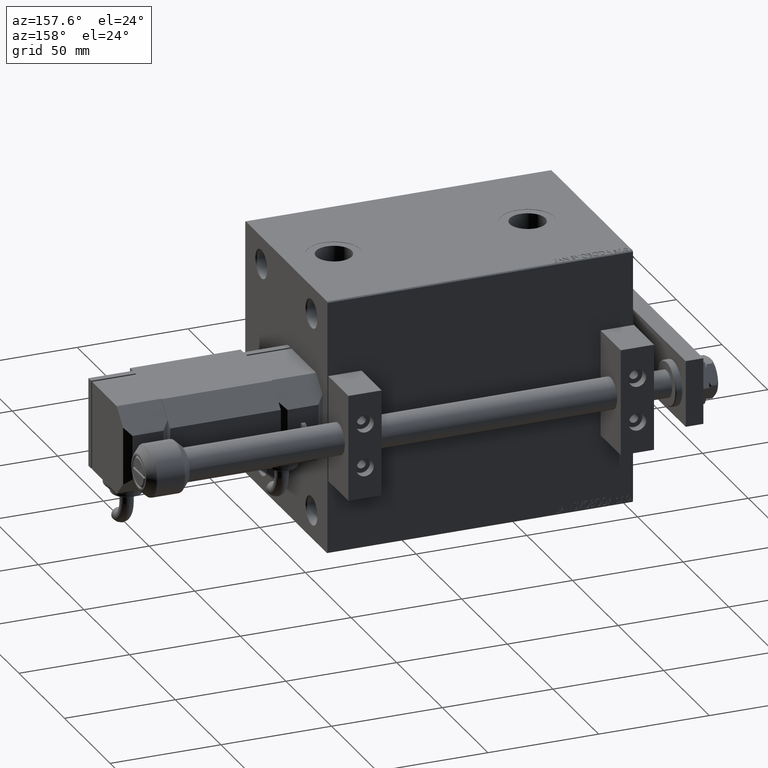
[diagram: clean part render]
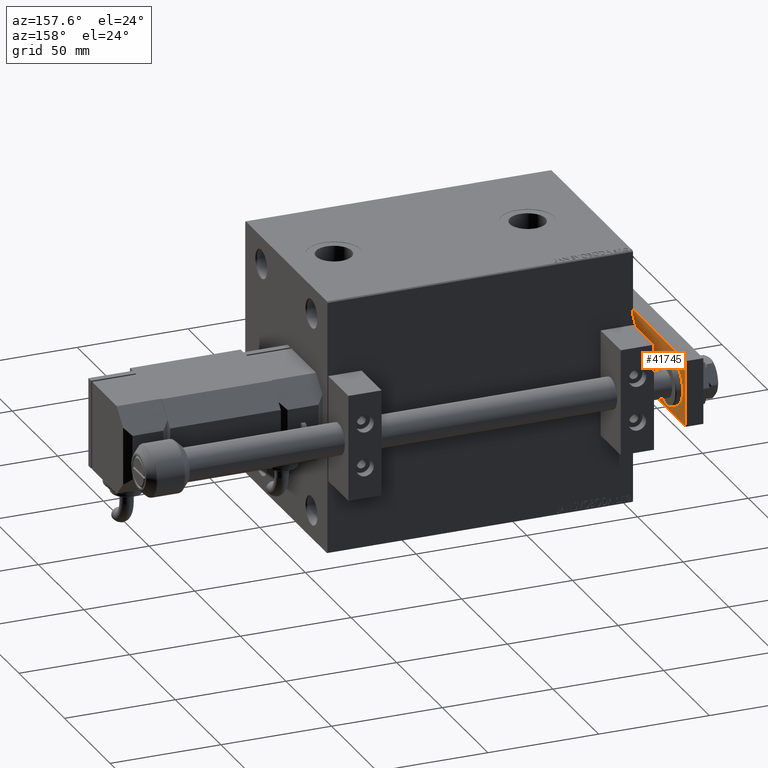
[diagram: same view with one face highlighted and labeled with its STEP entity id]
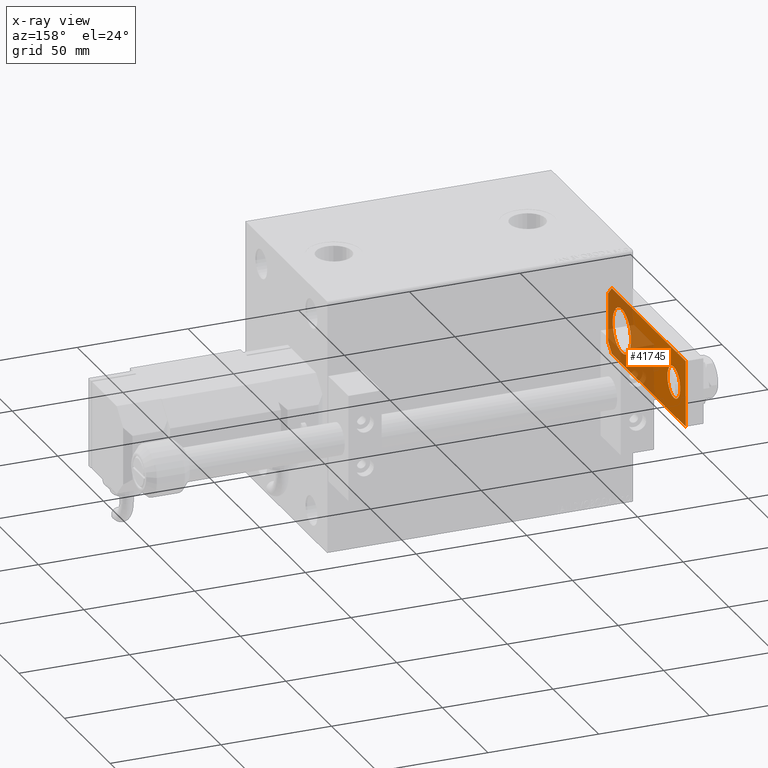
[diagram: x-ray of the same camera — body ghosted, the highlighted face saturated]
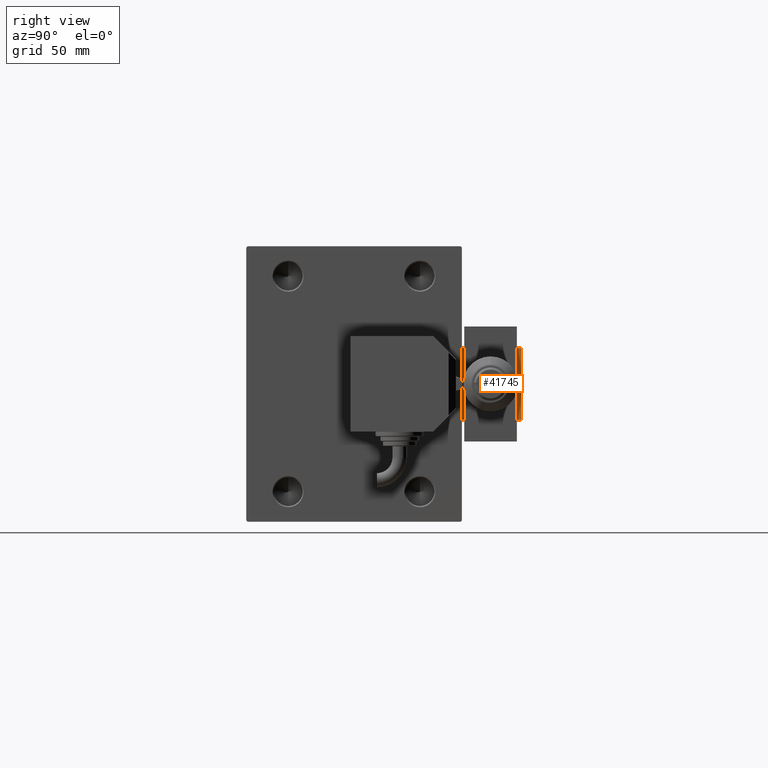
[diagram: same view with one face highlighted and labeled with its STEP entity id]
A machine part, auxiliary view. The second image highlights one B-rep face of the part: STEP entity #41745.
The next image is the same camera in x-ray: the body ghosted, the highlighted face saturated — about 49% of this face is hidden behind the body in this view.
A second angle (right view) of the same face is appended — the face is thin or edge-on in the first view.
In plain terms, the highlighted planar face has unit normal (-1, 0, 0).
Its self-contained STEP definition (entity closure, byte-faithful):
#282 = DIRECTION ( 'NONE',  ( 0.000000000000000000, 0.000000000000000000, 1.000000000000000000 ) ) ;
#356 = CARTESIAN_POINT ( 'NONE',  ( 1.963948872468190046E-17, 72.00000000000001421, 0.000000000000000000 ) ) ;
#909 = EDGE_LOOP ( 'NONE', ( #2565, #16260 ) ) ;
#1298 = EDGE_CURVE ( 'NONE', #29259, #26839, #33958, .T. ) ;
#1910 = LINE ( 'NONE', #16572, #39933 ) ;
#1912 = CARTESIAN_POINT ( 'NONE',  ( 15.00000000000000888, 3.999999999999989786, 0.000000000000000000 ) ) ;
#2565 = ORIENTED_EDGE ( 'NONE', *, *, #33812, .T. ) ;
#2809 = DIRECTION ( 'NONE',  ( 1.000000000000000000, 0.000000000000000000, 0.000000000000000000 ) ) ;
#3306 = AXIS2_PLACEMENT_3D ( 'NONE', #19990, #35914, #19739 ) ;
#3806 = DIRECTION ( 'NONE',  ( 0.000000000000000000, 0.000000000000000000, 1.000000000000000000 ) ) ;
#3875 = FACE_BOUND ( 'NONE', #38609, .T. ) ;
#3912 = DIRECTION ( 'NONE',  ( 0.000000000000000000, 0.000000000000000000, 1.000000000000000000 ) ) ;
#5086 = LINE ( 'NONE', #20490, #29381 ) ;
#5900 = AXIS2_PLACEMENT_3D ( 'NONE', #15465, #26090, #11424 ) ;
#6586 = LINE ( 'NONE', #40231, #38516 ) ;
#7180 = ORIENTED_EDGE ( 'NONE', *, *, #31521, .F. ) ;
#7389 = PLANE ( 'NONE',  #5900 ) ;
#7808 = CARTESIAN_POINT ( 'NONE',  ( 15.00000000000000178, 85.00000000000000000, 0.000000000000000000 ) ) ;
#8698 = VERTEX_POINT ( 'NONE', #44469 ) ;
#10037 = ORIENTED_EDGE ( 'NONE', *, *, #15462, .F. ) ;
#10564 = AXIS2_PLACEMENT_3D ( 'NONE', #356, #3912, #31195 ) ;
#10915 = FACE_BOUND ( 'NONE', #909, .T. ) ;
#11424 = DIRECTION ( 'NONE',  ( 1.000000000000000000, 0.000000000000000000, 0.000000000000000000 ) ) ;
#12484 = ORIENTED_EDGE ( 'NONE', *, *, #22261, .F. ) ;
#13106 = CARTESIAN_POINT ( 'NONE',  ( -11.00000000000000533, 9.629649721936179265E-32, 0.000000000000000000 ) ) ;
#13368 = EDGE_CURVE ( 'NONE', #48609, #41082, #42047, .T. ) ;
#15081 = ORIENTED_EDGE ( 'NONE', *, *, #44986, .T. ) ;
#15462 = EDGE_CURVE ( 'NONE', #29377, #31956, #47885, .T. ) ;
#15465 = CARTESIAN_POINT ( 'NONE',  ( 0.000000000000000000, 0.000000000000000000, 0.000000000000000000 ) ) ;
#15660 = DIRECTION ( 'NONE',  ( 1.000000000000000000, 0.000000000000000000, 0.000000000000000000 ) ) ;
#15874 = LINE ( 'NONE', #7808, #35105 ) ;
#16260 = ORIENTED_EDGE ( 'NONE', *, *, #1298, .T. ) ;
#16572 = CARTESIAN_POINT ( 'NONE',  ( -11.00000000000000533, 9.629649721936179265E-32, 0.000000000000000000 ) ) ;
#16880 = VERTEX_POINT ( 'NONE', #32351 ) ;
#18922 = AXIS2_PLACEMENT_3D ( 'NONE', #27778, #3806, #15660 ) ;
#19739 = DIRECTION ( 'NONE',  ( 1.000000000000000000, 0.000000000000000000, 0.000000000000000000 ) ) ;
#19990 = CARTESIAN_POINT ( 'NONE',  ( 0.000000000000000000, 15.00000000000000711, 0.000000000000000000 ) ) ;
#20121 = DIRECTION ( 'NONE',  ( -0.7071067811865463515, 0.7071067811865487940, -0.000000000000000000 ) ) ;
#20490 = CARTESIAN_POINT ( 'NONE',  ( 15.00000000000000888, 3.999999999999989786, 0.000000000000000000 ) ) ;
#22261 = EDGE_CURVE ( 'NONE', #31956, #22945, #15874, .T. ) ;
#22777 = VECTOR ( 'NONE', #25114, 1000.000000000000000 ) ;
#22945 = VERTEX_POINT ( 'NONE', #27134 ) ;
#23592 = ORIENTED_EDGE ( 'NONE', *, *, #13368, .T. ) ;
#24377 = EDGE_CURVE ( 'NONE', #22945, #16880, #46877, .T. ) ;
#25114 = DIRECTION ( 'NONE',  ( -8.163404592832032733E-17, 1.000000000000000000, 0.000000000000000000 ) ) ;
#25618 = CARTESIAN_POINT ( 'NONE',  ( 15.00000000000000888, 9.629649721936179265E-32, 0.000000000000000000 ) ) ;
#26090 = DIRECTION ( 'NONE',  ( -0.000000000000000000, 0.000000000000000000, 1.000000000000000000 ) ) ;
#26603 = VERTEX_POINT ( 'NONE', #13106 ) ;
#26839 = VERTEX_POINT ( 'NONE', #30013 ) ;
#27134 = CARTESIAN_POINT ( 'NONE',  ( -15.00000000000000000, 85.00000000000000000, 0.000000000000000000 ) ) ;
#27778 = CARTESIAN_POINT ( 'NONE',  ( 1.963948872468190046E-17, 72.00000000000001421, 0.000000000000000000 ) ) ;
#29259 = VERTEX_POINT ( 'NONE', #49743 ) ;
#29377 = VERTEX_POINT ( 'NONE', #1912 ) ;
#29381 = VECTOR ( 'NONE', #37653, 999.9999999999998863 ) ;
#30013 = CARTESIAN_POINT ( 'NONE',  ( -10.00000000000000178, 15.00000000000000711, 0.000000000000000000 ) ) ;
#31195 = DIRECTION ( 'NONE',  ( 1.000000000000000000, 0.000000000000000000, 0.000000000000000000 ) ) ;
#31521 = EDGE_CURVE ( 'NONE', #26603, #8698, #6586, .T. ) ;
#31842 = VECTOR ( 'NONE', #35504, 1000.000000000000000 ) ;
#31860 = CARTESIAN_POINT ( 'NONE',  ( 0.000000000000000000, 15.00000000000000711, 0.000000000000000000 ) ) ;
#31956 = VERTEX_POINT ( 'NONE', #49509 ) ;
#32351 = CARTESIAN_POINT ( 'NONE',  ( -15.00000000000000888, 4.000000000000017764, 0.000000000000000000 ) ) ;
#32673 = CIRCLE ( 'NONE', #18922, 7.000000000000002665 ) ;
#33508 = ORIENTED_EDGE ( 'NONE', *, *, #45362, .T. ) ;
#33812 = EDGE_CURVE ( 'NONE', #26839, #29259, #36210, .T. ) ;
#33958 = CIRCLE ( 'NONE', #3306, 10.00000000000000178 ) ;
#35105 = VECTOR ( 'NONE', #49523, 1000.000000000000000 ) ;
#35504 = DIRECTION ( 'NONE',  ( -1.020425574104004122E-16, -1.000000000000000000, 0.000000000000000000 ) ) ;
#35914 = DIRECTION ( 'NONE',  ( 0.000000000000000000, 0.000000000000000000, 1.000000000000000000 ) ) ;
#36210 = CIRCLE ( 'NONE', #45870, 10.00000000000000178 ) ;
#36535 = EDGE_LOOP ( 'NONE', ( #7180, #15081, #45433, #12484, #10037, #43607 ) ) ;
#37653 = DIRECTION ( 'NONE',  ( -0.7071067811865489050, -0.7071067811865462405, -0.000000000000000000 ) ) ;
#38516 = VECTOR ( 'NONE', #2809, 1000.000000000000000 ) ;
#38609 = EDGE_LOOP ( 'NONE', ( #23592, #33508 ) ) ;
#39046 = CARTESIAN_POINT ( 'NONE',  ( -15.00000000000000000, 85.00000000000000000, 0.000000000000000000 ) ) ;
#39933 = VECTOR ( 'NONE', #20121, 1000.000000000000000 ) ;
#40231 = CARTESIAN_POINT ( 'NONE',  ( -15.00000000000000888, 9.629649721936179265E-32, 0.000000000000000000 ) ) ;
#40706 = CARTESIAN_POINT ( 'NONE',  ( 7.000000000000002665, 72.00000000000001421, 0.000000000000000000 ) ) ;
#40968 = CARTESIAN_POINT ( 'NONE',  ( -7.000000000000002665, 72.00000000000001421, 0.000000000000000000 ) ) ;
#41082 = VERTEX_POINT ( 'NONE', #40706 ) ;
#41745 = ADVANCED_FACE ( 'NONE', ( #45296, #3875, #10915 ), #7389, .F. ) ;
#42047 = CIRCLE ( 'NONE', #10564, 7.000000000000002665 ) ;
#43472 = DIRECTION ( 'NONE',  ( 1.000000000000000000, 0.000000000000000000, 0.000000000000000000 ) ) ;
#43607 = ORIENTED_EDGE ( 'NONE', *, *, #44369, .T. ) ;
#44369 = EDGE_CURVE ( 'NONE', #29377, #8698, #5086, .T. ) ;
#44469 = CARTESIAN_POINT ( 'NONE',  ( 11.00000000000000533, 9.629649721936179265E-32, 0.000000000000000000 ) ) ;
#44986 = EDGE_CURVE ( 'NONE', #26603, #16880, #1910, .T. ) ;
#45296 = FACE_OUTER_BOUND ( 'NONE', #36535, .T. ) ;
#45362 = EDGE_CURVE ( 'NONE', #41082, #48609, #32673, .T. ) ;
#45433 = ORIENTED_EDGE ( 'NONE', *, *, #24377, .F. ) ;
#45870 = AXIS2_PLACEMENT_3D ( 'NONE', #31860, #282, #43472 ) ;
#46877 = LINE ( 'NONE', #39046, #31842 ) ;
#47885 = LINE ( 'NONE', #25618, #22777 ) ;
#48609 = VERTEX_POINT ( 'NONE', #40968 ) ;
#49509 = CARTESIAN_POINT ( 'NONE',  ( 15.00000000000000178, 85.00000000000000000, 0.000000000000000000 ) ) ;
#49523 = DIRECTION ( 'NONE',  ( -1.000000000000000000, 0.000000000000000000, 0.000000000000000000 ) ) ;
#49743 = CARTESIAN_POINT ( 'NONE',  ( 10.00000000000000178, 15.00000000000000888, 0.000000000000000000 ) ) ;